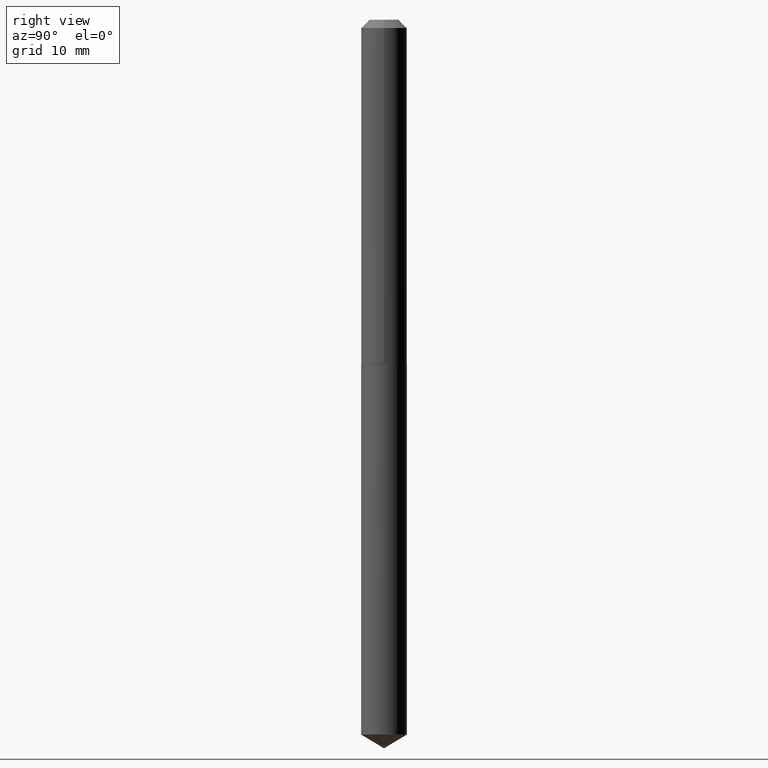
[diagram: clean part render]
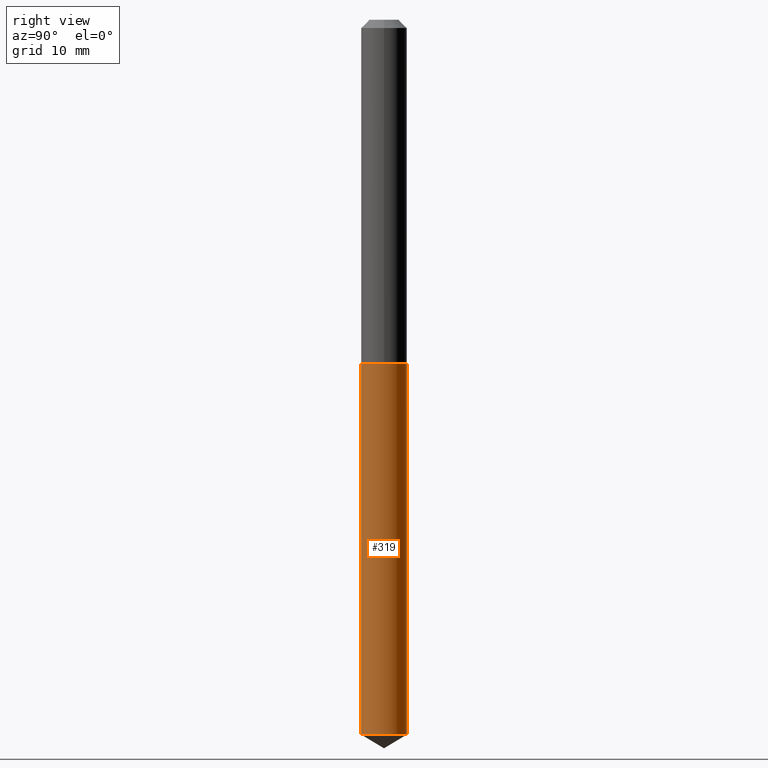
[diagram: same view with one face highlighted and labeled with its STEP entity id]
A machine part, right view. The second image highlights one B-rep face of the part: STEP entity #319.
In plain terms, the highlighted cylindrical surface (edge-blend (fillet) strip) has radius 2.1971 mm, axis along (-0, 0, 1).
Its self-contained STEP definition (entity closure, byte-faithful):
#7 = VERTEX_POINT ( 'NONE', #257 ) ;
#21 = DIRECTION ( 'NONE',  ( -2.445533427585269840E-29, 3.491388797320132949E-15, 1.000000000000000000 ) ) ;
#26 = DIRECTION ( 'NONE',  ( -2.445533427585270120E-29, 3.491388797320133343E-15, 1.000000000000000000 ) ) ;
#27 = EDGE_CURVE ( 'NONE', #193, #236, #219, .T. ) ;
#38 = ORIENTED_EDGE ( 'NONE', *, *, #27, .F. ) ;
#43 = DIRECTION ( 'NONE',  ( -2.445533427585269840E-29, 3.491388797320132949E-15, 1.000000000000000000 ) ) ;
#63 = EDGE_LOOP ( 'NONE', ( #101, #306, #38, #166 ) ) ;
#67 = AXIS2_PLACEMENT_3D ( 'NONE', #135, #312, #280 ) ;
#71 = EDGE_CURVE ( 'NONE', #7, #236, #201, .T. ) ;
#75 = CARTESIAN_POINT ( 'NONE',  ( 6.598027808210516184E-29, -9.419976321584187663E-15, -2.698025556454116014 ) ) ;
#93 = CARTESIAN_POINT ( 'NONE',  ( -6.040262716197958614E-16, -0.08650000000000938882, -2.698025556454115570 ) ) ;
#101 = ORIENTED_EDGE ( 'NONE', *, *, #325, .T. ) ;
#123 = LINE ( 'NONE', #241, #258 ) ;
#124 = AXIS2_PLACEMENT_3D ( 'NONE', #316, #21, #175 ) ;
#135 = CARTESIAN_POINT ( 'NONE',  ( 3.174218510428307267E-29, -4.531942777818403125E-15, -1.297999999999999821 ) ) ;
#137 = FACE_OUTER_BOUND ( 'NONE', #63, .T. ) ;
#156 = CARTESIAN_POINT ( 'NONE',  ( -6.040262716198300782E-16, -0.08650000000000450384, -1.297999999999999599 ) ) ;
#163 = DIRECTION ( 'NONE',  ( -6.982962677686265922E-15, -1.000000000000000000, 6.316411546044540328E-15 ) ) ;
#166 = ORIENTED_EDGE ( 'NONE', *, *, #167, .F. ) ;
#167 = EDGE_CURVE ( 'NONE', #223, #193, #123, .T. ) ;
#174 = VECTOR ( 'NONE', #287, 39.37007874015748143 ) ;
#175 = DIRECTION ( 'NONE',  ( -6.982962677686265922E-15, -1.000000000000000000, 3.158205773022270164E-15 ) ) ;
#181 = AXIS2_PLACEMENT_3D ( 'NONE', #75, #43, #163 ) ;
#193 = VERTEX_POINT ( 'NONE', #156 ) ;
#201 = LINE ( 'NONE', #230, #174 ) ;
#218 = CARTESIAN_POINT ( 'NONE',  ( 6.146194664325526821E-16, 0.08649999999999545552, -1.298000000000000265 ) ) ;
#219 = CIRCLE ( 'NONE', #124, 0.08649999999999997968 ) ;
#223 = VERTEX_POINT ( 'NONE', #93 ) ;
#230 = CARTESIAN_POINT ( 'NONE',  ( 6.146194664325182681E-16, 0.08649999999999545552, -1.298000000000000265 ) ) ;
#236 = VERTEX_POINT ( 'NONE', #218 ) ;
#241 = CARTESIAN_POINT ( 'NONE',  ( -6.040262716198300782E-16, -0.08650000000000450384, -1.297999999999999599 ) ) ;
#257 = CARTESIAN_POINT ( 'NONE',  ( 6.146194664325522877E-16, 0.08649999999999052891, -2.698025556454116458 ) ) ;
#258 = VECTOR ( 'NONE', #26, 39.37007874015748143 ) ;
#260 = CYLINDRICAL_SURFACE ( 'NONE', #67, 0.08649999999999997968 ) ;
#280 = DIRECTION ( 'NONE',  ( -6.982962677686265922E-15, -1.000000000000000000, 3.158205773022270164E-15 ) ) ;
#287 = DIRECTION ( 'NONE',  ( -2.445533427585270120E-29, 3.491388797320133343E-15, 1.000000000000000000 ) ) ;
#306 = ORIENTED_EDGE ( 'NONE', *, *, #71, .T. ) ;
#312 = DIRECTION ( 'NONE',  ( -2.445533427585269840E-29, 3.491388797320132949E-15, 1.000000000000000000 ) ) ;
#316 = CARTESIAN_POINT ( 'NONE',  ( 3.174218510428307267E-29, -4.531942777818403125E-15, -1.297999999999999821 ) ) ;
#319 = ADVANCED_FACE ( 'NONE', ( #137 ), #260, .T. ) ;
#325 = EDGE_CURVE ( 'NONE', #223, #7, #375, .T. ) ;
#375 = CIRCLE ( 'NONE', #181, 0.08649999999999997968 ) ;